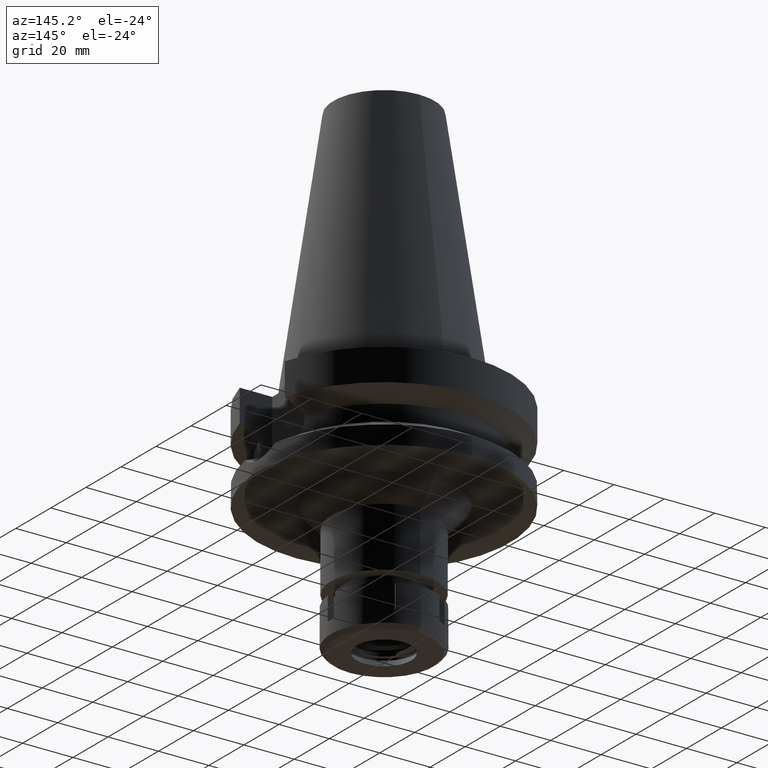
[diagram: clean part render]
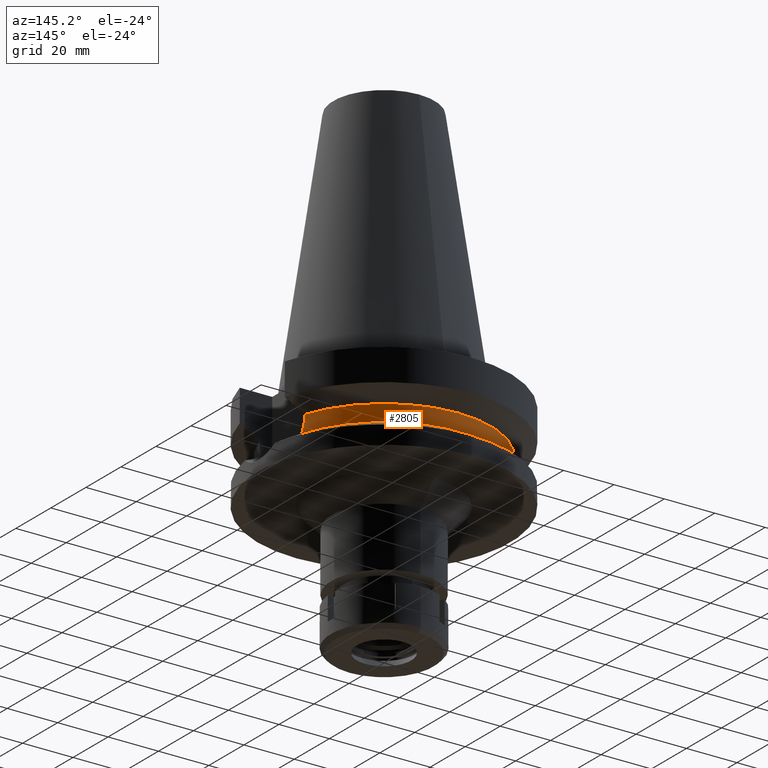
[diagram: same view with one face highlighted and labeled with its STEP entity id]
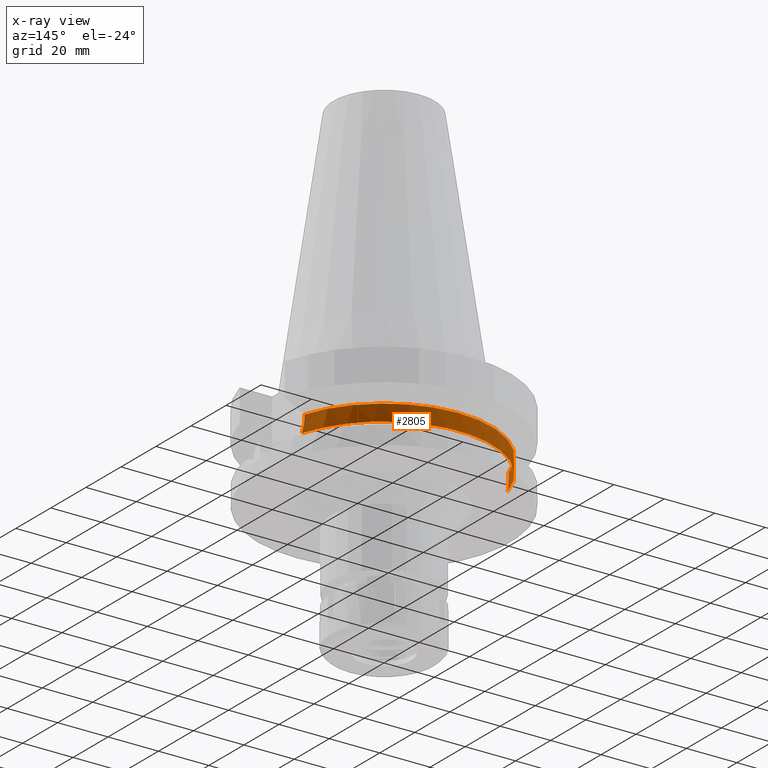
[diagram: x-ray of the same camera — body ghosted, the highlighted face saturated]
A machine part, auxiliary view. The second image highlights one B-rep face of the part: STEP entity #2805.
The next image is the same camera in x-ray: the body ghosted, the highlighted face saturated — about 2% of this face is hidden behind the body in this view.
In plain terms, the highlighted cylindrical surface (partial cylindrical patch) has radius 42.5 mm, axis along (0, 0, -1).
Its self-contained STEP definition (entity closure, byte-faithful):
#6 = CARTESIAN_POINT ( 'NONE',  ( 40.61156896389181270, 12.52821669071923338, -24.00856318992673266 ) ) ;
#7 = VERTEX_POINT ( 'NONE', #3185 ) ;
#43 = ORIENTED_EDGE ( 'NONE', *, *, #760, .F. ) ;
#46 = CARTESIAN_POINT ( 'NONE',  ( 0.0000000000000000000, 0.0000000000000000000, -26.40718074535000426 ) ) ;
#108 = VERTEX_POINT ( 'NONE', #2584 ) ;
#139 = CARTESIAN_POINT ( 'NONE',  ( -40.51083188481999997, 12.84999999999999964, -21.14999999999999858 ) ) ;
#167 = CARTESIAN_POINT ( 'NONE',  ( -40.85052569294000335, 11.72538061688000077, -26.40718074535000426 ) ) ;
#171 = AXIS2_PLACEMENT_3D ( 'NONE', #1052, #3577, #1946 ) ;
#260 = CARTESIAN_POINT ( 'NONE',  ( 40.51083188481999997, 12.84999999999999964, -21.14999999999999858 ) ) ;
#297 = CARTESIAN_POINT ( 'NONE',  ( 40.68244601107283387, 12.29666625012446346, -24.88710380514564235 ) ) ;
#308 = EDGE_CURVE ( 'NONE', #108, #7, #1059, .T. ) ;
#408 = CARTESIAN_POINT ( 'NONE',  ( -40.58662608485431633, 12.60878154790536598, -23.62927549513685221 ) ) ;
#481 = ORIENTED_EDGE ( 'NONE', *, *, #308, .T. ) ;
#484 = FACE_OUTER_BOUND ( 'NONE', #2760, .T. ) ;
#556 = DIRECTION ( 'NONE',  ( 0.0000000000000000000, 1.000000000000000000, 0.0000000000000000000 ) ) ;
#707 = CARTESIAN_POINT ( 'NONE',  ( -40.57496101843508995, 12.64633755876300647, -23.43369807928905146 ) ) ;
#760 = EDGE_CURVE ( 'NONE', #2234, #3265, #2657, .T. ) ;
#773 = CARTESIAN_POINT ( 'NONE',  ( -40.59736864107516396, 12.57412283048225099, -23.79851909554432510 ) ) ;
#779 = EDGE_CURVE ( 'NONE', #2037, #1367, #2106, .T. ) ;
#787 = CARTESIAN_POINT ( 'NONE',  ( 40.51083300056000525, 12.84999648251999993, -19.99284624891000206 ) ) ;
#807 = CARTESIAN_POINT ( 'NONE',  ( 40.79434743163939459, 11.92110232363585531, -25.97065181133539369 ) ) ;
#835 = CARTESIAN_POINT ( 'NONE',  ( 0.0000000000000000000, 1.006319759053999930E-14, -19.99281925464999787 ) ) ;
#867 = ORIENTED_EDGE ( 'NONE', *, *, #996, .F. ) ;
#893 = CIRCLE ( 'NONE', #1000, 42.50000000000002132 ) ;
#904 = VECTOR ( 'NONE', #2125, 1000.000000000000000 ) ;
#996 = EDGE_CURVE ( 'NONE', #108, #2037, #2390, .T. ) ;
#1000 = AXIS2_PLACEMENT_3D ( 'NONE', #835, #1438, #1422 ) ;
#1052 = CARTESIAN_POINT ( 'NONE',  ( 0.0000000000000000000, 2.583882281520999630E-14, 110.9900000000000091 ) ) ;
#1059 = CIRCLE ( 'NONE', #3113, 42.50000000000000000 ) ;
#1065 = CARTESIAN_POINT ( 'NONE',  ( 40.60613670648131546, 12.54578755583637495, -23.92964714798038628 ) ) ;
#1126 = CARTESIAN_POINT ( 'NONE',  ( 40.60257095199544608, 12.55731571366465182, -23.87709474180955738 ) ) ;
#1134 = CYLINDRICAL_SURFACE ( 'NONE', #171, 42.50000000000000000 ) ;
#1167 = ORIENTED_EDGE ( 'NONE', *, *, #1819, .T. ) ;
#1216 = CARTESIAN_POINT ( 'NONE',  ( -40.51083188481999997, 12.84999999999999964, -19.99281925464999787 ) ) ;
#1232 = EDGE_CURVE ( 'NONE', #3265, #7, #2923, .T. ) ;
#1297 = CARTESIAN_POINT ( 'NONE',  ( -40.54025313608427439, 12.75731810731626759, -22.70684014861360467 ) ) ;
#1313 = CARTESIAN_POINT ( 'NONE',  ( -40.51083188482000708, 12.85000000000002451, -21.59154171183185866 ) ) ;
#1367 = VERTEX_POINT ( 'NONE', #787 ) ;
#1417 = CARTESIAN_POINT ( 'NONE',  ( 40.54025086427707691, 12.75862911299039659, -22.93149008167891267 ) ) ;
#1422 = DIRECTION ( 'NONE',  ( -0.9531960443486575674, 0.3023529411764863672, 0.0000000000000000000 ) ) ;
#1438 = DIRECTION ( 'NONE',  ( 0.0000000000000000000, 0.0000000000000000000, -1.000000000000000000 ) ) ;
#1520 = CARTESIAN_POINT ( 'NONE',  ( -40.56599673094051184, 12.67509433839780897, -23.26596311455570998 ) ) ;
#1585 = CARTESIAN_POINT ( 'NONE',  ( -40.65435955981745053, 12.39001970624488891, -24.66361747048510011 ) ) ;
#1603 = CARTESIAN_POINT ( 'NONE',  ( 40.51083188481999997, 12.84999999999999964, -21.14999999999999858 ) ) ;
#1604 = ORIENTED_EDGE ( 'NONE', *, *, #779, .F. ) ;
#1648 = CARTESIAN_POINT ( 'NONE',  ( 40.66327695313657387, 12.35977177935063587, -24.67238797833628539 ) ) ;
#1819 = EDGE_CURVE ( 'NONE', #2234, #1367, #893, .T. ) ;
#1855 = CARTESIAN_POINT ( 'NONE',  ( -40.73816957792652715, 12.11682261037110386, -25.53412604446968004 ) ) ;
#1946 = DIRECTION ( 'NONE',  ( 0.0000000000000000000, -1.000000000000000000, 0.0000000000000000000 ) ) ;
#1960 = DIRECTION ( 'NONE',  ( 0.0000000000000000000, 0.0000000000000000000, 1.000000000000000000 ) ) ;
#2037 = VERTEX_POINT ( 'NONE', #2207 ) ;
#2106 = LINE ( 'NONE', #1603, #904 ) ;
#2125 = DIRECTION ( 'NONE',  ( 9.642122151655148610E-07, -3.039772167059045013E-06, 0.9999999999949150675 ) ) ;
#2136 = CARTESIAN_POINT ( 'NONE',  ( -40.54944727710435615, 12.72806419699667480, -22.93049076237651462 ) ) ;
#2156 = DIRECTION ( 'NONE',  ( 9.675522355831797616E-07, 3.050301891739939204E-06, -0.9999999999948797624 ) ) ;
#2207 = CARTESIAN_POINT ( 'NONE',  ( 40.51083188481999997, 12.84999999999999964, -21.14999999999999858 ) ) ;
#2232 = CARTESIAN_POINT ( 'NONE',  ( 40.51083188481999997, 12.84999999999999964, -22.03308001790878023 ) ) ;
#2234 = VERTEX_POINT ( 'NONE', #1216 ) ;
#2360 = CARTESIAN_POINT ( 'NONE',  ( -40.51818719763605969, 12.82722225432310204, -22.03686830847411215 ) ) ;
#2390 = B_SPLINE_CURVE_WITH_KNOTS ( 'NONE', 3,
 ( #2449, #807, #2503, #297, #1648, #2736, #2758, #6, #1065, #1126, #3366, #1417, #2232, #260 ),
 .UNSPECIFIED., .F., .F.,
 ( 4, 2, 2, 1, 1, 2, 2, 4 ),
 ( 0.0000000000000000000, 0.2500000000000199285, 0.3750000000000298650, 0.4375000000000346945, 0.4687500000000359157, 0.4843750000000358047, 0.5000000000000356382, 1.000000000000000000 ),
 .UNSPECIFIED. ) ;
#2449 = CARTESIAN_POINT ( 'NONE',  ( 40.85052569294000335, 11.72538061688000077, -26.40718074535000426 ) ) ;
#2503 = CARTESIAN_POINT ( 'NONE',  ( 40.74530522851000569, 12.08734613715847139, -25.53455770061882646 ) ) ;
#2584 = CARTESIAN_POINT ( 'NONE',  ( 40.85052569294000335, 11.72538061688000077, -26.40718074535000426 ) ) ;
#2654 = CARTESIAN_POINT ( 'NONE',  ( -40.59544671389546977, 12.58032818125508001, -23.76890350620164227 ) ) ;
#2657 = LINE ( 'NONE', #3519, #3235 ) ;
#2691 = CARTESIAN_POINT ( 'NONE',  ( -40.59188398425018818, 12.59182459259148956, -23.71305796896682949 ) ) ;
#2712 = CARTESIAN_POINT ( 'NONE',  ( -40.51083188481999997, 12.84999999999999964, -21.14999999999999858 ) ) ;
#2736 = CARTESIAN_POINT ( 'NONE',  ( 40.63719938804641174, 12.44499676302016233, -24.35261212845198742 ) ) ;
#2758 = CARTESIAN_POINT ( 'NONE',  ( 40.62482961095487610, 12.48525133054237379, -24.19329755004105564 ) ) ;
#2760 = EDGE_LOOP ( 'NONE', ( #43, #1167, #1604, #867, #481, #3368 ) ) ;
#2805 = ADVANCED_FACE ( 'NONE', ( #484 ), #1134, .T. ) ;
#2923 = B_SPLINE_CURVE_WITH_KNOTS ( 'NONE', 3,
 ( #139, #1313, #2360, #1297, #2136, #1520, #707, #408, #2691, #2654, #773, #1585, #1855, #167 ),
 .UNSPECIFIED., .F., .F.,
 ( 4, 2, 2, 1, 1, 2, 2, 4 ),
 ( 0.0000000000000000000, 0.2499999999999877875, 0.3749999999999826250, 0.4374999999999801270, 0.4687499999999798495, 0.4843749999999797939, 0.4999999999999796829, 1.000000000000000000 ),
 .UNSPECIFIED. ) ;
#3113 = AXIS2_PLACEMENT_3D ( 'NONE', #46, #1960, #556 ) ;
#3185 = CARTESIAN_POINT ( 'NONE',  ( -40.85052569294000335, 11.72538061688000077, -26.40718074535000426 ) ) ;
#3235 = VECTOR ( 'NONE', #2156, 1000.000000000000000 ) ;
#3265 = VERTEX_POINT ( 'NONE', #2712 ) ;
#3366 = CARTESIAN_POINT ( 'NONE',  ( 40.60092750940732031, 12.56262654778542931, -23.85254111937017640 ) ) ;
#3368 = ORIENTED_EDGE ( 'NONE', *, *, #1232, .F. ) ;
#3519 = CARTESIAN_POINT ( 'NONE',  ( -40.51083300442999757, 12.84999647032999981, -19.99284634242000180 ) ) ;
#3577 = DIRECTION ( 'NONE',  ( 0.0000000000000000000, 0.0000000000000000000, -1.000000000000000000 ) ) ;